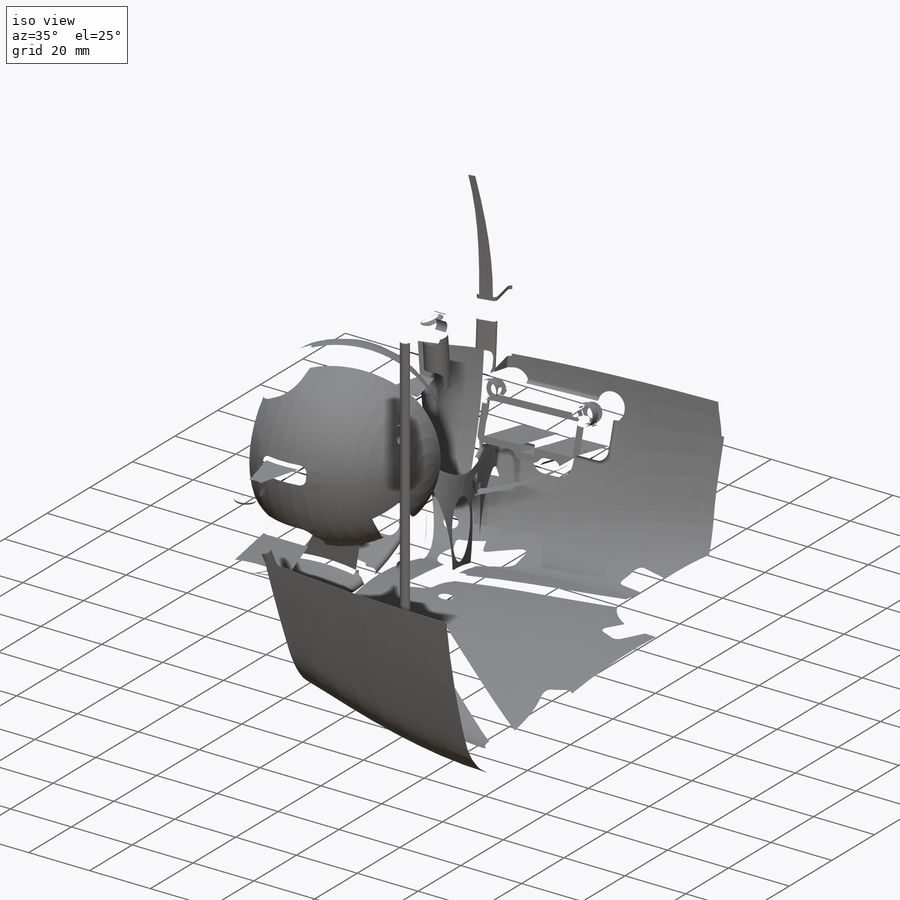
[diagram: iso view]
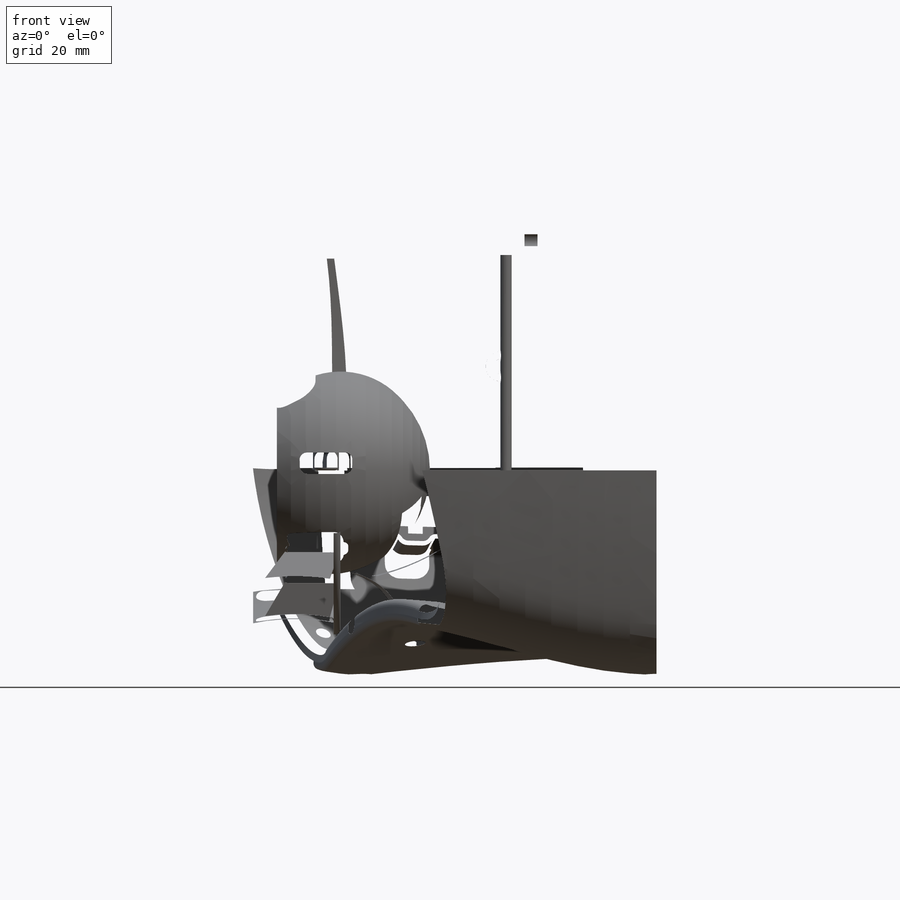
[diagram: front view]
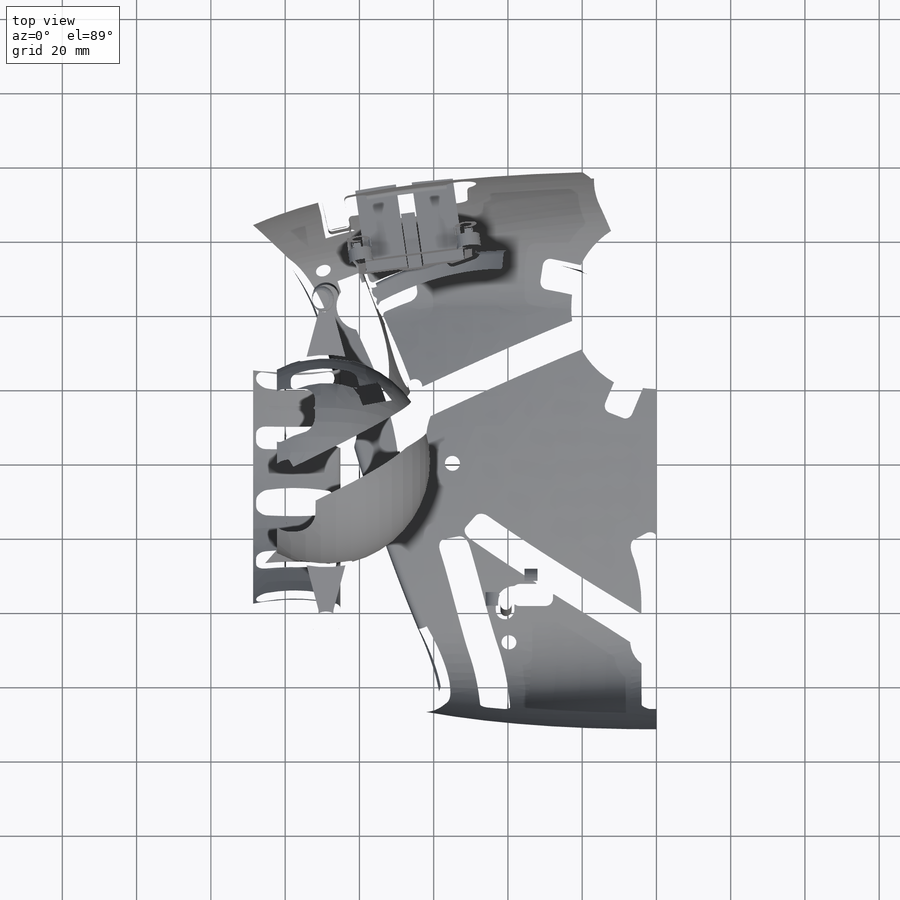
[diagram: top view]
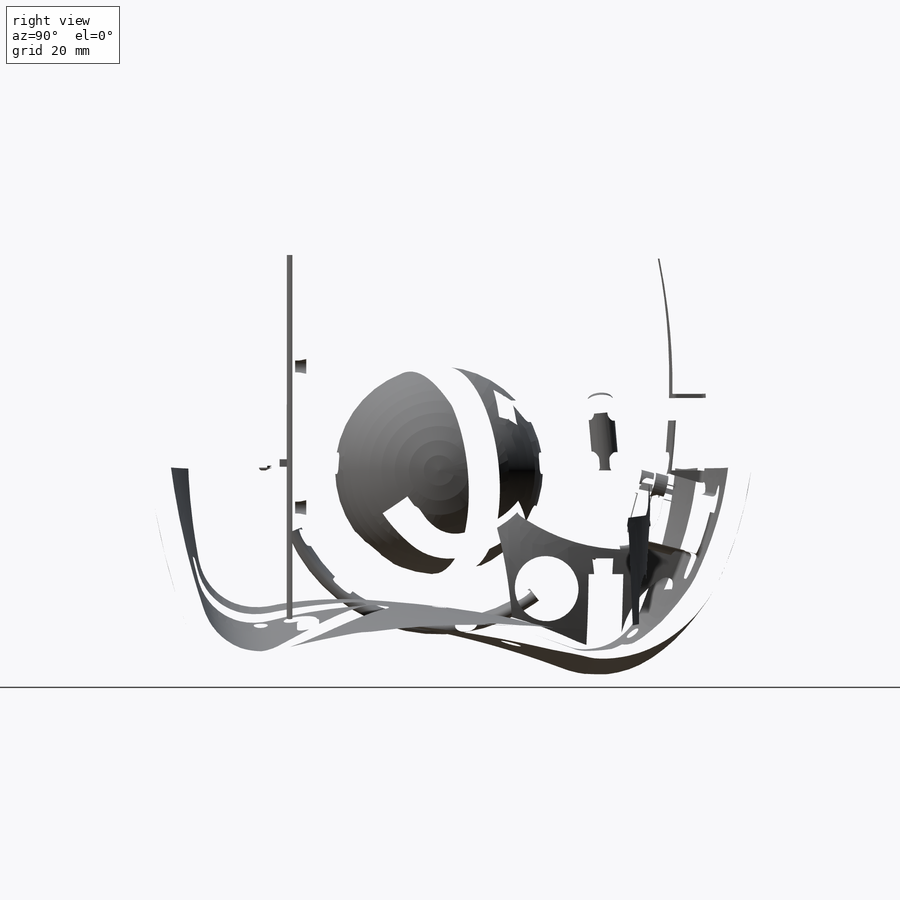
[diagram: right view]
SOLIDWORKS PART (.sldprt)
format: sldprt  version: not decoded by parser v0  size: 63,528,960 bytes
history: native  units: mm
features: sketch x185, revolve x182, thread x65, plane x61, surface_op x44, fillet x16, hole x12, sweep x8, material x7, pattern_circular x6, boolean_combine x6, cut_revolve x5, mirror x5, extrude x2, cut_extrude x1 + 22 further entries (+41 scaffold rows collapsed; 22 parser-record rows omitted)
feature tree (690):
  scaffold x41  (default folders/planes/origin — collapsed)
  material  "Material <nicht festgelegt>"
  material  "Rotation3"
  material  "Rotation4"
  material  "Rotation5"
  material  "Rotation6"
  material  "Rotation7"
  material  "Rotation13"
  plane  "Vorne"
  sketch  "Skizze4"  dims[c1.D3=~163.785268mm c1.D2=~51.648182mm c2.D3=~211.701734mm c2.D4=~228.409906mm c2.D7=~87.232181mm c3.D3=375.0mm c3.D5=~146.556848mm c3.D6=5000.0mm c3.D7=300.0mm c3.D12=200.0mm c3.D13=35.0mm c3.D14=480.0mm c3.D16=~225.559991mm c3.D17=~137.502733mm c3.D18=160.0mm c3.D19=90.0mm c3.D1=~28.211065mm c3.D2=~66.263957mm c4.D1=80.0mm c4.D5=~65.463628mm c4.D6=~16.895229mm c4.D8=~53.710382mm c5.D1=85.0mm c5.D2=14.0mm c5.D4=80.0mm c5.D5=28.0mm c5.D7=~82.24904mm c5.D8=80.0mm c5.D9=55.0mm c5.D10=47.5mm c5.D11=50.0mm c5.D15=85.0mm c5.D16=120.0mm c5.D14=85.0mm c6.D15=110.0mm c6.D16=~2.564998deg c7.D16=~52.359878mm c7.D17=~261.799388mm c7.D20=~285.822971mm c7.D21=~79.266788mm c7.D22=~73.257786mm]
  parser-record x22  (decoder bookkeeping rows leaked as tree rows — omitted from the tree; the rows remain in map.json)
  plane  "Ebene116"
  sketch  "Skizze5"  dims[c1.D1=~332.447459mm c1.D2=~299.702419mm c1.D5=~380.558368mm c1.D6=300.0mm c1.D7=300.0mm c2.D5=400.0mm c2.D6=400.0mm c2.D7=305.0mm c2.D8=280.0mm c3.D5=400.0mm c3.D8=250.0mm c3.D2=375.0mm c3.D3=~312.951834mm c3.D4=85.0mm c4.D2=280.0mm c4.D4=440.0mm c4.D5=475.0mm c4.D1=~1535.889742mm c5.D2=~1535.889742mm c5.D3=145.0mm c5.D4=145.0mm c5.D1=~1658.062789mm c6.D2=~1658.062789mm c6.D1=150.0mm c6.D3=~1483.529864mm]
  sketch  "Skizze6"  dims[c1.D2=~243.594358mm c1.D3=245.0mm c1.D4=465.0mm c1.D5=360.0mm c1.D1=140.0mm c2.D2=~1483.529864mm]
  sketch  "Skizze7"  dims[c1.D1=~180.714068mm c1.D2=~71.88216mm c1.D3=70.0mm c1.D4=180.0mm c2.D1=~1570.796327mm c2.D2=~1308.996939mm]
  sketch  "Skizze8"
  plane  "Ebene117"  Offset=80mm
  sketch  "3D-Skizze1"
  sketch  "Skizze9"  dims[D2=25.0mm D3=25.0mm D1=40.0mm]
  sketch  "Skizze10"
  plane  "Ebene118"  Offset=130mm
  "3D-Skizze2"
  sketch  "Skizze12"  dims[c1.D2=~28.489147mm c1.D3=20.0mm c1.D4=20.0mm c1.D5=100.0mm c1.D6=100.0mm c1.D1=30.0mm c2.D2=30.0mm]
  sketch  "Skizze13"
  plane  "Ebene123"
  sketch  "Skizze112"  dims[D1=45.0mm D2=65.0mm]
  surface_op  "Oberfläche-Ausformung3"
  sketch  "Skizze14"
  sketch  "Skizze17"  dims[D1=~349.06585mm D2=120.0mm D3=89.0mm]
  sketch  "Skizze18"
  plane  "Ebene119"
  sketch  "Skizze19"  dims[c1.D5=180.0mm c1.D6=250.0mm c2.D6=~314.148269mm c2.D7=315.0mm c2.D1=70.0mm c2.D2=65.0mm c2.D3=150.0mm c2.D4=55.0mm c3.D6=~1308.996939mm]
  surface_op  "Oberfläche-Trimmen4"
  sketch  "Skizze20"  dims[D1=350.0mm D2=200.0mm]
  surface_op  "Oberfläche-Trimmen5"
  sketch  "Skizze23"  dims[D3=75.0mm D1=37.5mm D2=48.0mm]
  surface_op  "Oberfläche-Trimmen6"
  sketch  "Skizze24"  dims[c1.D3=249.0mm c1.D4=100.0mm c1.D5=70.0mm c1.D2=12.5mm c1.D1=105.0mm c2.D2=15.0mm c2.D6=12.0mm c2.D7=~1308.996939mm c3.D2=~165.379311mm c3.D6=9.5mm c3.D7=~349.06585mm]
  surface_op  "Oberfläche-Trimmen7"
  sketch  "Skizze26"  dims[c1.D2=20.0mm c1.D1=~47.038277mm c2.D2=40.0mm c2.D4=28.0mm c2.D1=89.0mm c2.D3=8.0mm c2.D5=~785.398163mm c2.D6=8.0mm c2.D7=~261.799388mm]
  sketch  "Skizze28"  dims[c1.D1=17.2mm c1.D2=36.0mm c1.D3=~261.799388mm c2.D2=15.0mm c2.D4=30.0mm]
  revolve  "Rotation2"  [1 undecoded]
  hole  "M2.5 Gewindebohrung1"  Diameter=2.05mm Depth=12mm
  sketch  "Skizze62"  dims[D1=19.0mm]
  sketch  "Skizze61"  dims[hole-wizard template sketch: 34 standard entries collapsed; hole parameters kept: c5.Bohrerdurchmesser=2.05mm c5.Bohrungstiefe=12.0mm c5.Spitzenwinkel=~2059.488517mm]
  thread  "Bohrungsgewinde4"  Diameter=10mm  [1 undecoded]
  pattern_circular  "Kreismuster1"  Count=8  [1 undecoded]
  surface_op  "Oberfläche-Zusammenfügen5"
  surface_op  "Oberfläche-Zusammenfügen7"
  sketch  "Skizze57"  dims[D1=3.0mm D2=3.0mm D3=90.0mm D4=90.0mm]
  surface_op  "Oberfläche-Trimmen28"
  surface_op  "Oberfläche-Ausformung6"
  surface_op  "Oberfläche-Ausformung7"
  surface_op  "Oberfläche-Zusammenfügen8"
  surface_op  "Oberfläche-Zusammenfügen11"
  fillet  "Verrundung24"  Radius=2mm
  revolve  "Verrundung25"  [1 undecoded]
  sketch  "Skizze72"  dims[c1.D11=12.5mm c1.D1=~104.719755mm c1.D2=37.146mm c1.D3=8.785mm c1.D4=3.0mm c1.D5=10.0mm c1.D6=40.0mm c1.D7=3.0mm c1.D8=~87.266463mm c1.D9=40.0mm c2.D5=18.0mm c2.D6=~87.266463mm c2.D10=40.0mm c2.D12=18.0mm c2.D13=25.0mm c2.D14=30.0mm c2.D15=~1047.197551mm c2.D16=~1047.197551mm]
  sketch  "Skizze73"  dims[D1=45.0mm]
  revolve  "Verrundung21"  [1 undecoded]
  revolve  "Verrundung120"  [1 undecoded]
  revolve  "Verrundung121"  [1 undecoded]
  sketch  "Skizze75"  dims[D3=15.5mm D1=30.0mm D2=~392.699082mm]
  cut_extrude  "Schnitt-Linear austragen1"  Depth=8mm
  "Achse2"
  sketch  "Kreismuster2"  dims[D3=~6283.185307mm]
  sketch  "Skizze78"  dims[D1=~392.699082mm D2=30.0mm]
  revolve  "Verrundung23"  [1 undecoded]
  sketch  "Skizze79"  dims[D3=25.0mm D4=40.0mm D1=80.0mm D2=30.0mm D5=~19.210196mm]
  surface_op  "Oberfläche-Linear austragen1"
  sketch  "Skizze80"  dims[c1.D1=~211.950862mm c1.D2=8.0mm c1.D3=75.0mm c1.D5=12.0mm c1.D7=35.0mm c2.D1=21.0mm c2.D4=15.0mm c2.D6=33.0mm]
  surface_op  "Oberfläche-Trimmen31"
  sketch  "Skizze81"  dims[D2=40.0mm D1=25.0mm]
  surface_op  "Oberfläche-Zusammenfügen10"
  sketch  "Skizze83"  dims[D1=60.0mm]
  sketch  "Skizze84"  dims[D1=34.0mm]
  fillet  "Oberfläche-Verlängern6"  Radius=12mm
  sketch  "Skizze96"  dims[c1.D3=50.0mm c1.D4=31.0mm c1.D9=9.0mm c1.D10=9.0mm c1.D11=40.0mm c1.D1=20.0mm c1.D2=20.0mm c1.D5=22.0mm c1.D6=50.0mm c1.D7=33.0mm c1.D8=27.0mm c2.D2=1.5mm]
  surface_op  "Oberfläche-Trimmen34"
  sketch  "Skizze85"  dims[D1=85.0mm D2=12.8mm]
  plane  "Ebene121"
  sketch  "Skizze86"  dims[c1.D3=~151.139817mm c1.D6=50.0mm c1.D1=85.0mm c1.D2=~139.62634mm c2.D3=~349.06585mm c2.D4=~261.799388mm c2.D5=80.0mm]
  sketch  "Skizze87"  dims[D1=80.0mm D2=80.0mm]
  sketch  "Skizze88"  dims[D1=55.0mm]
  "3D-Skizze5"
  "3D-Skizze6"
  "3D-Skizze7"
  "3D-Skizze8"
  surface_op  "Oberfläche-Ausformung9"
  revolve  "Verrundung22"  [1 undecoded]
  sketch  "Skizze90"  dims[D2=36.0mm D4=48.0mm D1=~785.398163mm D3=~523.598776mm]
  surface_op  "Oberfläche-Trimmen32"
  sketch  "Skizze91"
  surface_op  "Oberfläche-Ausformung12"
  sketch  "Skizze93"
  sketch  "Skizze94"
  surface_op  "Oberfläche-Ausformung13"
  "3D-Skizze9"
  sketch  "Skizze95"  dims[D2=60.0mm D1=36.5mm D3=~654.498469mm D4=89.0mm]
  surface_op  "Oberfläche-Trimmen33"
  "3D-Skizze10"
  sketch  "Skizze97"  dims[D2=17.5mm D1=27.5mm D3=89.0mm D4=~569.917008mm]
  surface_op  "Oberfläche-Trimmen35"
  sketch  "Skizze98"  dims[D2=42.0mm D1=24.0mm D3=~523.598776mm]
  surface_op  "Oberfläche-Trimmen36"  Oberfläche-Offset19=0deg Oberfläche-Offset20=0deg Oberfläche-Offset21=0deg
  sketch  "Skizze99"  dims[D1=~3141.592654mm]
  surface_op  "Oberfläche-Trimmen37"
  surface_op  "Oberfläche-Trimmen43"
  surface_op  "Oberfläche-Trimmen39"
  surface_op  "Oberfläche-Trimmen40"
  surface_op  "Oberfläche-Trimmen41"
  surface_op  "Oberfläche-Trimmen42"
  sketch  "Skizze105"  dims[D1=38.0mm D2=64.0mm D3=47.0mm]
  plane  "Ebene122"
  sketch  "Skizze106"  dims[D1=10.0mm]
  extrude  "Oberfläche-Rotation3"  Depth=3141.592654mm
  surface_op  "Oberfläche-Trimmen44"  Oberfläche-Offset22=0deg
  surface_op  "Oberfläche-Trimmen46"
  sketch  "Skizze107"  dims[D1=8.0mm D3=50.0mm D2=30.0mm D4=~261.799388mm D5=77.5mm]
  surface_op  "Oberfläche-Trimmen47"
  sketch  "Skizze108"  dims[D1=15.0mm D6=44.0mm D2=28.0mm D3=32.0mm D4=70.35mm D5=49.3mm]
  surface_op  "Oberfläche-Trimmen48"
  sketch  "Skizze212"  dims[D1=40.0mm D2=10.0mm]
  surface_op  "Oberfläche-Trimmen55"
  sketch  "Skizze101"  dims[c1.D3=2.0mm c1.D1=26.5mm c1.D2=3.0mm c2.D3=6.0mm]
  sketch  "Skizze103"  dims[D1=85.0mm D2=90.0mm]
  thread  "Schnitt-Linear austragen2"  [2 undecoded]
  sketch  "Skizze104"  dims[D1=5.5mm D2=20.0mm]
  cut_revolve  "Schnitt-Rotation1"  [1 undecoded]
  sketch  "Skizze109"  dims[D1=2.55mm D2=~1570.796327mm D3=26.0mm D4=2.0mm D5=23.0mm D6=~1570.796327mm D7=6.0mm]
  "Schnitt-Rotation2"
  sketch  "Skizze111"  dims[D1=70.0mm D2=2.55mm D3=~1570.796327mm D4=27.0mm D5=2.5mm D6=5.0mm D7=~1570.796327mm D8=24.5mm D9=0.5mm]
  "Schnitt-Rotation3"
  sketch  "Skizze144"  dims[c1.D1=~2094.395102mm c1.D2=4.2mm c1.D3=4.2mm c2.D2=4.2mm c2.D3=4.2mm c3.D2=4.2mm c3.D3=4.2mm c4.D2=4.2mm c4.D3=4.2mm c4.D4=4.2mm c5.D2=4.2mm c5.D3=4.2mm]
  thread  "Schnitt-Linear austragen6"  Diameter=4mm  [1 undecoded]
  sketch  "Skizze146"  dims[D1=~349.06585mm D2=~1047.197551mm D3=~1047.197551mm D4=4.2mm D5=4.2mm D6=8.0mm]
  thread  "Schnitt-Linear austragen8"  Diameter=4.4mm  [1 undecoded]
  revolve  "Verrundung178"  [1 undecoded]
  revolve  "Verrundung85"  [1 undecoded]
  revolve  "Verrundung246"  [1 undecoded]
  revolve  "Verrundung247"  [1 undecoded]
  revolve  "Verrundung248"  [1 undecoded]
  revolve  "Verrundung249"  [1 undecoded]
  revolve  "Verrundung250"  [1 undecoded]
  revolve  "Verrundung251"  [1 undecoded]
  revolve  "Verrundung252"  [1 undecoded]
  revolve  "Verrundung253"  [1 undecoded]
  revolve  "Verrundung254"  [1 undecoded]
  revolve  "Verrundung255"  [1 undecoded]
  revolve  "Verrundung86"  [1 undecoded]
  hole  "Variabler Verrundungsradius9"  Diameter=1mm
  revolve  "Verrundung256"  [1 undecoded]
  hole  "Variabler Verrundungsradius8"  Diameter=2mm
  revolve  "Verrundung95"  [1 undecoded]
  revolve  "Verrundung187"  [1 undecoded]
  revolve  "Verrundung96"  [1 undecoded]
  revolve  "Verrundung257"  [1 undecoded]
  hole  "Variabler Verrundungsradius10"  Diameter=1mm
  revolve  "Verrundung104"  [1 undecoded]
  revolve  "Verrundung112"  [1 undecoded]
  revolve  "Verrundung105"  [1 undecoded]
  revolve  "Verrundung106"  [1 undecoded]
  revolve  "Verrundung107"  [1 undecoded]
  revolve  "Verrundung88"  [1 undecoded]
  hole  "Variabler Verrundungsradius2"  Diameter=1mm Oberfläche-Offset24=0deg
  sketch  "Skizze113"  dims[D1=1.0mm]
  thread  "Aufsatz-Linear austragen1"  Diameter=45.8mm  [1 undecoded]
  fillet  "Oberfläche-Verlängern5"  Radius=4.9mm
  sketch  "Oberflächenschnitt7"
  revolve  "Verrundung58"  [1 undecoded]
  revolve  "Verrundung113"  [1 undecoded]
  revolve  "Verrundung258"  [1 undecoded]
  hole  "Variabler Verrundungsradius11"  Diameter=1mm
  hole  "Variabler Verrundungsradius12"  Diameter=0mm
  hole  "Variabler Verrundungsradius13"  Diameter=0.5mm
  revolve  "Verrundung259"  [1 undecoded]
  revolve  "Verrundung260"  [1 undecoded]
  revolve  "Verrundung261"  [1 undecoded]
  sketch  "Skizze114"  dims[D1=34.0mm D2=28.0mm D3=20.0mm D4=30.0mm]
  extrude  "Oberfläche-Rotation4"  Depth=3141.592654mm Oberfläche-Offset25=0deg
  surface_op  "Oberfläche-Trimmen49"
  sketch  "Skizze115"  dims[D1=22.0mm D2=7.5mm D3=48.5mm D4=21.0mm]
  plane  "Ebene125"
  sketch  "Skizze116"  dims[D1=48.0mm D2=2.25mm D3=~785.398163mm D4=1.05mm D5=1.0mm D6=3.8mm D7=0.8mm D8=12.0mm D9=~1047.197551mm]
  "Schnitt-Rotation4"
  plane  "Ebene126"
  sketch  "Skizze117"  dims[D1=52.0mm D2=2.25mm D3=1.05mm D4=0.8mm D5=~785.398163mm D6=~1047.197551mm D7=2.5mm D8=5.4mm D9=12.0mm]
  "Schnitt-Rotation5"
  revolve  "Verrundung59"  [1 undecoded]
  revolve  "Verrundung60"  [1 undecoded]
  revolve  "Verrundung61"  [1 undecoded]
  revolve  "Verrundung62"  [1 undecoded]
  sketch  "Skizze118"
  thread  "Schnitt-Linear austragen3"  [2 undecoded]
  revolve  "Verrundung275"  [1 undecoded]
  revolve  "Verrundung276"  [1 undecoded]
  plane  "Ebene127"  Offset=89mm
  sketch  "Skizze119"  dims[D1=45.0mm D2=35.0mm D3=46.1mm D4=30.0mm D5=45.0mm]
  plane  "Ebene128"
  sketch  "Skizze120"  dims[D1=~506.145483mm D2=22.4mm D3=16.15mm]
  plane  "Ebene129"
  sketch  "Skizze121"  dims[c1.D1=6.3mm c1.D2=7.5mm c1.D3=8.293mm c2.D2=15.0mm c2.D3=7.5mm c2.D4=15.0mm c2.D5=15.0mm]
  thread  "Aufsatz-Linear austragen2"  Diameter=12mm  [1 undecoded]
  thread  "Aufsatz-Linear austragen3"  Diameter=2mm  [1 undecoded]
  plane  "Ebene140"  Offset=1mm
  sketch  "Skizze135"  dims[c1.D2=85.0mm c1.D4=42.0mm c1.D1=~959.931089mm c2.D2=~1745.329252mm c2.D3=30.5mm c2.D1=15.0mm c2.D5=~698.131701mm]
  thread  "Aufsatz-Linear austragen10"  Diameter=6mm  [1 undecoded]
  plane  "Ebene137"
  sketch  "Skizze136"  dims[D1=~144.160787mm D2=~100.560436mm D3=68.0mm D4=27.0mm D5=5.0mm D6=6.0mm]
  thread  "Aufsatz-Linear austragen11"  Diameter=4mm  [1 undecoded]
  plane  "Ebene138"
  sketch  "Skizze137"  dims[D1=1.0mm D2=10.0mm D3=10.0mm]
  thread  "Aufsatz-Linear austragen12"  Diameter=10mm  [1 undecoded]
  plane  "Ebene139"
  sketch  "Skizze138"  dims[c1.D1=6.0mm c1.D2=10.0mm c1.D3=15.0mm c1.D4=86.0mm c1.D5=10.0mm c1.D6=5.0mm c1.D7=~1570.796327mm c2.D1=6.0mm c2.D2=4.0mm c2.D3=5.0mm c2.D4=6.0mm c2.D5=3.0mm c2.D6=~1570.796327mm c2.D7=96.0mm]
  thread  "Aufsatz-Linear austragen13"  [2 undecoded]
  revolve  "Verrundung73"  [1 undecoded]
  revolve  "Verrundung74"  [1 undecoded]
  revolve  "Verrundung75"  [1 undecoded]
  hole  "Variabler Verrundungsradius3"  Diameter=0.5mm
  revolve  "Verrundung76"  [1 undecoded]
  revolve  "Verrundung122"  [1 undecoded]
  revolve  "Verrundung123"  [1 undecoded]
  hole  "Variabler Verrundungsradius4"  Diameter=3mm
  revolve  "Verrundung78"  [1 undecoded]
  revolve  "Verrundung79"  [1 undecoded]
  plane  "Ebene4"  Offset=10mm
  sketch  "Skizze156"  dims[D1=~1047.197551mm D2=~1047.197551mm D3=2.95mm D4=2.95mm]
  thread  "Schnitt-Linear austragen10"  Diameter=2.8mm  [1 undecoded]
  revolve  "Verrundung117"  [1 undecoded]
  sketch  "Skizze158"  dims[D1=3.5mm]
  thread  "Schnitt-Linear austragen12"  Diameter=15mm  [1 undecoded]
  revolve  "Verrundung278"  [1 undecoded]
  sketch  "Skizze203"  dims[D2=6.0mm D1=45.0mm D3=15.0mm D4=~1483.529864mm D5=2.0mm]
  plane  "Ebene154"
  sketch  "Skizze204"  dims[D1=6.0mm D2=12.5mm D3=~436.332313mm D4=46.1mm]
  plane  "Ebene155"
  sketch  "Skizze205"  dims[D1=2.0mm D2=~113.446401mm D3=22.4mm D4=16.15mm]
  plane  "Ebene156"
  sketch  "Skizze206"  dims[D1=6.3mm D2=15.0mm D3=15.0mm]
  thread  "Aufsatz-Linear austragen26"  [2 undecoded]
  thread  "Aufsatz-Linear austragen27"  Diameter=2mm  [1 undecoded]
  sketch  "Skizze207"  dims[D1=6.0mm D2=3.0mm D3=20.0mm D4=20.0mm D5=10.0mm]
  thread  "Aufsatz-Linear austragen28"  Diameter=8mm  [1 undecoded]
  sketch  "Skizze209"  dims[D1=2.5mm]
  thread  "Schnitt-Linear austragen21"  [2 undecoded]
  sketch  "Skizze250"
  thread  "Schnitt-Linear austragen28"  [2 undecoded]
  sketch  "Skizze208"  dims[c1.D5=75.0mm c1.D1=7.0mm c1.D2=7.5mm c1.D3=9.0mm c1.D4=20.0mm c2.D2=20.0mm]
  thread  "Aufsatz-Linear austragen29"  [2 undecoded]
  sketch  "Skizze251"  dims[D2=27.0mm D1=7.0mm]
  thread  "Aufsatz-Linear austragen39"  [2 undecoded]
  revolve  "Verrundung179"  [1 undecoded]
  revolve  "Verrundung180"  [1 undecoded]
  revolve  "Verrundung269"  [1 undecoded]
  revolve  "Verrundung181"  [1 undecoded]
  plane  "Ebene158"  Offset=6.9mm
  sketch  "Skizze210"  dims[D1=2.95mm D2=~1047.197551mm D3=2.95mm D4=11.0mm D5=2.95mm D6=~654.498469mm D7=~1047.197551mm D8=2.95mm D9=~13.745492mm D10=~1047.197551mm D11=2.95mm D12=2.95mm D13=12.0mm]
  thread  "Schnitt-Linear austragen22"  Diameter=2.8mm  [1 undecoded]
  thread  "Schnitt-Linear austragen23"  Diameter=0.7mm  [1 undecoded]
  thread  "Schnitt-Linear austragen24"  Diameter=1.2mm  [1 undecoded]
  revolve  "Verrundung182"  [1 undecoded]
  revolve  "Verrundung183"  [1 undecoded]
  revolve  "Verrundung184"  [1 undecoded]
  revolve  "Verrundung185"  [1 undecoded]
  revolve  "Verrundung186"  [1 undecoded]
  sketch  "Skizze211"  dims[D1=3.5mm]
  thread  "Schnitt-Linear austragen25"  Diameter=14mm  [1 undecoded]
  plane  "Ebene144"  Offset=21mm Oberfläche-Offset26=0deg Oberfläche-Offset27=0deg
  sketch  "Skizze179"  dims[D1=8.0mm D2=57.0mm D3=16.0mm D4=10.0mm]
  surface_op  "Oberfläche-Trimmen50"
  fillet  "Oberfläche-Verlängern7"  Radius=6mm
  fillet  "Oberfläche-Verlängern8"  Radius=5mm
  sketch  "Skizze180"  dims[c1.D1=12.5mm c1.D2=13.2mm c1.D3=9.5mm c2.D1=5.0mm c2.D2=57.5mm c2.D3=12.5mm c2.D4=9.2mm c2.D5=10.0mm c3.D2=57.5mm c3.D6=11.9mm]
  pattern_circular  "Oberfläche-Linear austragen2"  [2 undecoded]
  sketch  "Skizze182"  dims[D1=~196.349541mm D2=~79.534319mm D3=~59.259986mm D4=~9.849946mm]
  pattern_circular  "Oberfläche-Linear austragen3"  [2 undecoded]
  surface_op  "Oberfläche-Trimmen52"
  sketch  "Skizze183"  dims[D1=~144.369822mm D2=~69.978276mm]
  sketch  "Skizze184"  dims[D1=6.0mm D2=59.0mm D3=~218.166156mm D4=87.7mm D5=~13.356311mm]
  plane  "Ebene146"
  plane  "Ebene147"
  sketch  "Skizze186"  dims[c1.D1=8.0mm c1.D3=220.0mm c1.D2=17.0mm c2.D1=64.0mm]
  thread  "Aufsatz-Linear austragen22"  [2 undecoded]
  sketch  "Skizze187"  dims[D4=200.0mm D1=~18.255376mm D2=~74.878417mm D3=58.0mm]
  thread  "Schnitt-Linear austragen16"  Diameter=1mm  [1 undecoded]
  revolve  "Verrundung142"  [1 undecoded]
  revolve  "Verrundung150"  [1 undecoded]
  revolve  "Verrundung151"  [1 undecoded]
  revolve  "Verrundung152"  [1 undecoded]
  hole  "Variabler Verrundungsradius6"  Diameter=1mm
  revolve  "Verrundung153"  [1 undecoded]
  hole  "Variabler Verrundungsradius7"  Diameter=2mm
  revolve  "Verrundung171"  [1 undecoded]
  revolve  "Verrundung172"  [1 undecoded]
  plane  "Ebene184"  Offset=45mm
  sketch  "Skizze304"  dims[D4=15.0mm D1=45.0mm D2=~261.799388mm D3=15.0mm]
  thread  "Aufsatz-Linear austragen66"  Diameter=6mm  [1 undecoded]
  plane  "Ebene185"
  sketch  "Skizze305"  dims[D1=5.0mm D2=~1308.996939mm D3=~1308.996939mm]
  thread  "Aufsatz-Linear austragen67"  Diameter=3mm  [1 undecoded]
  plane  "Ebene186"
  sketch  "Skizze307"  dims[D1=5.0mm D2=~1308.996939mm]
  plane  "Ebene187"
  sketch  "Skizze191"  dims[D5=15.0mm D1=~506.145483mm D2=71.0mm D3=22.1mm D4=45.0mm]
  sketch  "Skizze308"  dims[D1=6.0mm]
  sketch  "Skizze310"
  sketch  "Skizze311"
  revolve  "Verrundung386"  [1 undecoded]
  revolve  "Verrundung387"  [1 undecoded]
  revolve  "Verrundung388"  [1 undecoded]
  revolve  "Verrundung389"  [1 undecoded]
  revolve  "Verrundung391"  [1 undecoded]
  revolve  "Verrundung392"  [1 undecoded]
  sketch  "Skizze192"  dims[D1=~47.187865mm D2=70.0mm D3=~207.799809mm D4=85.0mm]
  pattern_circular  "Oberfläche-Linear austragen4"  [2 undecoded]
  fillet  "Oberfläche-Verlängern9"  Radius=5mm
  surface_op  "Oberfläche-Trimmen53"
  revolve  "Verrundung164"  [1 undecoded]
  plane  "Ebene149"
  sketch  "Skizze193"  dims[D1=2.5mm]
  pattern_circular  "Oberfläche-Linear austragen7"  [2 undecoded]
  "3D-Skizze13"
  sketch  "Skizze249"  dims[D4=5.0mm D5=5.0mm D2=85.0mm D3=55.0mm D1=2.0mm]
  surface_op  "Oberfläche-Trimmen58"  Oberfläche-Offset34=0deg
  surface_op  "Oberfläche-Trimmen59"
  revolve  "Verrundung266"  [1 undecoded]
  revolve  "Verrundung267"  [1 undecoded]
  revolve  "Verrundung268"  [1 undecoded]
  sweep  "Schnitt-Austragung1"
  revolve  "Verrundung165"  [1 undecoded]
  plane  "Ebene150"  Offset=52mm
  sketch  "Skizze194"  dims[D1=2.5mm D2=58.0mm D3=33.0mm]
  thread  "Schnitt-Linear austragen18"  [2 undecoded]
  revolve  "Verrundung166"  [1 undecoded]
  plane  "Ebene165"  Offset=40mm
  sketch  "Skizze241"  dims[D1=48.0mm D2=50.0mm D3=12.0mm D4=2.5mm D5=3.5mm D6=1.0mm D7=7.0mm]
  "Schnitt-Rotation14"
  revolve  "Verrundung242"  [1 undecoded]
  revolve  "Verrundung243"  Angle=0deg Oberfläche-Offset50=0deg
  sketch  "Skizze195"  dims[c1.D4=30.0mm c1.D1=90.15mm c1.D2=53.0mm c1.D3=20.0mm c2.D2=113.0mm c2.D5=~174.532925mm c2.D6=42.0mm]
  sketch  "Skizze277"  dims[D1=4.0mm D2=48.7mm D3=~1134.464014mm D4=15.0mm]
  cut_revolve  "Kurve7"  [1 undecoded]
  plane  "Ebene176"
  sketch  "Skizze278"  dims[D1=2.0mm D2=5.0mm]
  sweep  "Austragung3"
  "Achse5"
  "Achse6"
  revolve  "Verrundung322"  [1 undecoded]
  revolve  "Verrundung334"  [1 undecoded]
  revolve  "Verrundung324"  [1 undecoded]
  revolve  "Verrundung325"  [1 undecoded]
  sketch  "Skizze196"  dims[D1=~523.598776mm D2=78.0mm D3=75.0mm D4=~45.892499mm]
  pattern_circular  "Oberfläche-Linear austragen5"  [2 undecoded]
  fillet  "Oberfläche-Verlängern10"  Radius=5mm
  surface_op  "Oberfläche-Trimmen54"
  revolve  "Verrundung167"  [1 undecoded]
  cut_revolve  "Kurve2"  [1 undecoded]
  sketch  "Skizze252"  dims[c1.D2=5.5mm c1.D1=65.5mm c1.Oberfläche-Offset35=0.0deg c2.D1=0.0mm]
  fillet  "Oberfläche-Verlängern13"  Radius=6mm
  surface_op  "Oberfläche-Zusammenfügen12"
  revolve  "Verrundung271"  [1 undecoded]
  thread  "Aufsatz-Linear austragen44"  Diameter=9mm  [1 undecoded]
  sketch  "Oberflächenschnitt8"
  boolean_combine  "Kombinieren1"
  revolve  "Verrundung273"  [1 undecoded]
  revolve  "Verrundung274"  [1 undecoded]
  plane  "Ebene151"
  sketch  "Skizze197"  dims[D1=2.5mm]
  sweep  "Schnitt-Austragung2"
  revolve  "Verrundung168"  [1 undecoded]
  revolve  "Verrundung295"  Angle=0deg Oberfläche-Offset30=0deg
  fillet  "Oberfläche-Verlängern11"  Radius=10mm
  sketch  "Skizze198"  dims[D1=35.0mm D2=~69.81317mm D3=82.0mm D4=10.0mm D5=12.0mm]
  cut_revolve  "Kurve3"  [1 undecoded]
  plane  "Ebene152"
  sketch  "Skizze199"  dims[D1=2.5mm]
  sweep  "Schnitt-Austragung3"
  revolve  "Verrundung169"  [1 undecoded]
  plane  "Ebene166"  Offset=90mm
  sketch  "Skizze242"  dims[D1=56.5mm D2=50.0mm D3=~610.865238mm D4=12.0mm D5=2.5mm D6=1.0mm D7=3.8mm D8=~5.725781mm]
  "Schnitt-Rotation15"
  revolve  "Verrundung244"  [1 undecoded]
  revolve  "Verrundung245"  Angle=0deg Oberfläche-Offset51=0deg Oberfläche-Offset52=0deg
  sketch  "Skizze279"  dims[D1=3.0mm D2=14.0mm D3=~57.616389mm D4=~17.316409mm]
  surface_op  "Oberfläche-Trimmen60"
  "3D-Skizze14"
  plane  "Ebene177"
  sketch  "Skizze280"  dims[D1=5.0mm D2=2.0mm]
  sweep  "Austragung4"
  sketch  "Skizze281"  dims[D1=~1047.197551mm]
  sketch  "Skizze282"  dims[D1=~1047.197551mm]
  revolve  "Verrundung328"  [1 undecoded]
  revolve  "Verrundung329"  [1 undecoded]
  revolve  "Verrundung330"  [1 undecoded]
  revolve  "Verrundung331"  [1 undecoded]
  revolve  "Verrundung332"  [1 undecoded]
  revolve  "Verrundung333"  [1 undecoded]
  sketch  "Skizze200"  dims[D3=2.5mm D6=4.0mm D1=~523.598776mm D2=29.0mm D4=~523.598776mm D5=~523.598776mm]
  thread  "Aufsatz-Linear austragen25"  Diameter=8mm  [1 undecoded]
  revolve  "Verrundung173"  [1 undecoded]
  revolve  "Verrundung174"  [1 undecoded]
  revolve  "Verrundung175"  [1 undecoded]
  revolve  "Verrundung176"  [1 undecoded]
  "Achse4"
  plane  "Ebene153"  Offset=523.598776mm
  sketch  "Skizze202"  dims[D1=2.5mm D2=6.0mm D3=6.0mm D4=36.0mm]
  thread  "Schnitt-Linear austragen20"  [2 undecoded]
  revolve  "Verrundung177"  [1 undecoded]
  plane  "Ebene167"  Offset=65mm
  sketch  "Skizze243"  dims[D1=19.0mm D2=48.0mm D3=~261.799388mm D4=2.5mm D5=3.5mm D6=1.0mm D7=~5.681007mm D8=~13.217377mm]
  "Schnitt-Rotation16"
  revolve  "Verrundung262"  [1 undecoded]
  revolve  "Verrundung263"  [1 undecoded]
  sketch  "Skizze283"  dims[c1.D1=~18.028618mm c1.D2=~79.77886mm c1.D3=~197.39556mm c1.D4=6.9mm c1.Oberfläche-Offset53=0.0deg c2.D1=1.0mm]
  cut_revolve  "Kurve8"  [1 undecoded]
  plane  "Ebene178"
  sketch  "Skizze284"  dims[D1=2.0mm D2=5.0mm]
  sweep  "Austragung5"
  sketch  "Skizze285"  dims[D1=~872.664626mm]
  sketch  "Skizze286"  dims[D1=~872.664626mm]
  revolve  "Verrundung335"  [1 undecoded]
  revolve  "Verrundung340"  [1 undecoded]
  revolve  "Verrundung341"  [1 undecoded]
  revolve  "Verrundung336"  [1 undecoded]
  revolve  "Verrundung337"  [1 undecoded]
  plane  "Ebene159"  Offset=37mm
  sketch  "Skizze213"  dims[D4=3.2mm D5=4.0mm D1=33.02mm D2=22.05mm D3=94.08mm D6=6.0mm D7=~46.829947mm D8=~1308.996939mm]
  thread  "Aufsatz-Linear austragen30"  Diameter=3mm  [1 undecoded]
  plane  "Ebene160"
  sketch  "Skizze214"  dims[c1.D3=1.0mm c1.D1=3.0mm c1.D2=6.0mm c1.D4=32.0mm c1.D5=~1308.996939mm c2.D2=2.0mm c2.D6=~1308.996939mm]
  thread  "Aufsatz-Linear austragen31"  Diameter=5mm  [1 undecoded]
  sketch  "Skizze215"  dims[D4=36.0mm D1=22.05mm D2=3.0mm D3=~1265.363708mm D5=~436.332313mm D6=13.5mm]
  thread  "Aufsatz-Linear austragen32"  Diameter=1mm  [1 undecoded]
  thread  "Aufsatz-Linear austragen33"  Diameter=3mm  [1 undecoded]
  revolve  "Verrundung188"  [1 undecoded]
  revolve  "Verrundung189"  [1 undecoded]
  revolve  "Verrundung190"  [1 undecoded]
  revolve  "Verrundung191"  [1 undecoded]
  revolve  "Verrundung192"  [1 undecoded]
  plane  "Ebene179"
  plane  "Ebene180"  Offset=8mm
  sketch  "Skizze287"  dims[D1=1.5mm]
  sketch  "Skizze288"  dims[D1=1.5mm]
  thread  "Aufsatz-Linear austragen56"  [2 undecoded]
  revolve  "Verrundung342"  [1 undecoded]
  revolve  "Verrundung343"  [1 undecoded]
  revolve  "Verrundung344"  [1 undecoded]
  plane  "Ebene164"  Offset=17mm
  sketch  "Skizze237"  dims[D1=10.0mm D2=17.5mm D3=4.0mm D4=5.0mm]
  thread  "Aufsatz-Linear austragen37"  Diameter=3mm  [1 undecoded]
  sketch  "Skizze238"  dims[D2=5.0mm D1=4.0mm D3=~610.865238mm]
  thread  "Aufsatz-Linear austragen38"  Diameter=5mm  [1 undecoded]
  sketch  "Skizze275"  dims[D1=1.0mm D2=2.0mm D3=4.0mm D4=2.0mm]
  thread  "Aufsatz-Linear austragen55"  [2 undecoded]
  revolve  "Verrundung317"  [1 undecoded]
  revolve  "Verrundung315"  [1 undecoded]
  revolve  "Verrundung318"  [1 undecoded]
  revolve  "Verrundung319"  [1 undecoded]
  sketch  "Skizze276"  dims[D1=3.0mm]
  thread  "Schnitt-Linear austragen37"  Diameter=4mm  [1 undecoded]
  revolve  "Verrundung320"  [1 undecoded]
  revolve  "Verrundung321"  [1 undecoded]
  sketch  "Skizze239"  dims[D1=~907.571211mm D2=50.0mm D3=70.25mm D4=~349.06585mm D5=8.0mm D6=9.0mm D7=1.0mm]
  "Schnitt-Rotation12"
  revolve  "Verrundung238"  [1 undecoded]
  sketch  "Skizze240"  dims[D1=55.0mm D2=44.0mm D3=15.0mm D4=1.0mm D5=2.5mm D6=3.5mm D7=5.0mm]
  "Schnitt-Rotation13"
  revolve  "Verrundung239"  [1 undecoded]
  revolve  "Verrundung240"  [1 undecoded]
  fillet  "Oberfläche-Verlängern14"  Radius=7mm
  fillet  "Oberfläche-Verlängern15"  Radius=6mm
  sketch  "Skizze266"  dims[D1=80.0mm D2=~523.598776mm]
  plane  "Ebene173"
  sketch  "Skizze268"  dims[D5=9.0mm D6=5.0mm D1=35.0mm D2=51.0mm D3=10.0mm D4=24.5mm]
  thread  "Aufsatz-Linear austragen51"  Diameter=50.1mm  [1 undecoded]
  sketch  "Oberflächenschnitt11"
  sketch  "Oberflächenschnitt12"  dims[c1.Oberfläche-Offset40=0.0deg c1.D1=0.0mm c2.D1=0.25mm c3.D1=0.25mm c4.D1=0.25mm c5.D1=0.25mm]
  sketch  "Oberflächenschnitt14"
  boolean_combine  "Kombinieren4"
  revolve  "Verrundung296"  [1 undecoded]
  revolve  "Verrundung297"  [1 undecoded]
  sketch  "Skizze270"  dims[D5=8.0mm D6=4.0mm D1=16.5mm D2=10.0mm D3=~70.723404mm D4=~51.777882mm]
  sketch  "Skizze271"  dims[D1=60.0mm D2=~349.06585mm]
  plane  "Ebene174"
  sketch  "Skizze272"  dims[c1.D1=8.0mm c1.D6=4.0mm c1.D2=~24.174932mm c1.D3=~5.489902mm c1.D4=~29.937208mm c1.D5=~23.763366mm c1.Oberfläche-Offset44=0.0deg c2.D1=0.5mm c2.Oberfläche-Offset45=0.0deg c3.D1=0.5mm c3.Oberfläche-Offset46=0.0deg c4.D1=0.0mm]
  thread  "Aufsatz-Linear austragen53"  Diameter=66.2mm  [1 undecoded]
  fillet  "Oberfläche-Verlängern19"  Radius=7mm
  fillet  "Oberfläche-Verlängern20"  Radius=7mm
  sketch  "Oberflächenschnitt19"
  sketch  "Oberflächenschnitt20"
  sketch  "Oberflächenschnitt21"
  boolean_combine  "Kombinieren10"
  revolve  "Verrundung303"  [1 undecoded]
  revolve  "Verrundung304"  [1 undecoded]
  sketch  "Skizze273"  dims[D1=40.0mm D2=~436.332313mm]
  plane  "Ebene175"
  sketch  "Skizze274"  dims[D1=8.0mm D4=4.0mm D2=0.25mm D3=13.0mm]
  thread  "Aufsatz-Linear austragen54"  Diameter=19.8mm Oberfläche-Offset47=0deg Oberfläche-Offset48=0deg Oberfläche-Offset49=0deg  [1 undecoded]
  fillet  "Oberfläche-Verlängern21"  Radius=8mm
  fillet  "Oberfläche-Verlängern22"  Radius=8mm
  sketch  "Oberflächenschnitt22"
  sketch  "Oberflächenschnitt23"
  sketch  "Oberflächenschnitt24"
  boolean_combine  "Kombinieren7"
  revolve  "Verrundung305"  [1 undecoded]
  revolve  "Verrundung306"  [1 undecoded]
  sketch  "Skizze289"  dims[D1=4.0mm D2=8.0mm D3=28.0mm D4=10.0mm]
  thread  "Aufsatz-Linear austragen57"  Diameter=5mm Oberfläche-Offset54=0deg  [1 undecoded]
  sketch  "Skizze290"  dims[D1=~1.756514mm D2=~1.540914mm]
  surface_op  "Oberfläche-Trimmen61"
  sketch  "Oberflächenschnitt26"
  boolean_combine  "Kombinieren8"
  revolve  "Verrundung345"  [1 undecoded]
  revolve  "Verrundung346"  [1 undecoded]
  sketch  "Skizze291"  dims[D2=8.0mm D3=4.0mm D1=62.0mm D4=44.0mm]
  thread  "Aufsatz-Linear austragen58"  Diameter=5mm Oberfläche-Offset55=0deg  [1 undecoded]
  fillet  "Oberfläche-Verlängern23"  Radius=0.5mm
  sketch  "Oberflächenschnitt27"
  boolean_combine  "Kombinieren9"
  revolve  "Verrundung347"  [1 undecoded]
  revolve  "Verrundung348"  [1 undecoded]
  sketch  "Skizze293"  dims[D1=13.0mm D2=85.0mm D3=~261.799388mm D4=30.0mm]
  plane  "Ebene181"
  sketch  "Skizze294"  dims[D1=55.0mm D2=26.4mm D3=23.9mm D4=79.6mm D5=~135.263017mm]
  plane  "Ebene182"
  sketch  "Skizze295"  dims[c1.D1=9.6mm c1.D2=0.2mm c1.D3=0.2mm c1.D4=0.2mm c1.D5=0.2mm c2.D3=0.5mm c2.D4=0.2mm c3.D3=0.2mm c3.D1=9.6mm c3.D2=0.2mm c4.D3=0.2mm c4.D4=0.2mm c4.D5=0.2mm c4.D6=3.0mm c4.D7=10.0mm]
  thread  "Aufsatz-Linear austragen60"  Diameter=22.9mm  [1 undecoded]
  thread  "Schnitt-Linear austragen38"  Diameter=10mm  [1 undecoded]
  sketch  "Skizze297"  dims[D1=4.0mm D2=6.0mm]
  sketch  "Skizze298"  dims[D1=2.0mm]
  sketch  "Skizze299"  dims[D1=3.0mm]
  thread  "Aufsatz-Linear austragen62"  [2 undecoded]
  thread  "Schnitt-Linear austragen41"  Diameter=2mm  [1 undecoded]
  sketch  "Skizze300"  dims[D1=3.0mm]
  thread  "Aufsatz-Linear austragen63"  Diameter=9mm  [1 undecoded]
  thread  "Schnitt-Linear austragen42"  Diameter=8mm  [1 undecoded]
  revolve  "Verrundung353"  [1 undecoded]
  sketch  "Skizze301"  dims[c1.D2=6.5mm c1.D3=3.2mm c1.D1=0.1mm c1.D4=1.0mm c1.D5=1.0mm c1.D6=0.0mm c1.D7=1.0mm c1.D8=0.0mm c2.D1=2.0mm c2.D4=1.2mm c2.D9=1.2mm c2.D10=2.0mm c2.D11=1.2mm c2.D12=2.0mm]
  thread  "Aufsatz-Linear austragen64"  Diameter=0.8mm  [1 undecoded]
  thread  "Schnitt-Linear austragen43"  Diameter=0.8mm  [1 undecoded]
  plane  "Ebene183"  Offset=6mm
  sketch  "Skizze302"  dims[c1.D1=~1047.197551mm c1.D2=2.95mm c1.D3=2.95mm c2.D1=~1047.197551mm c2.D2=2.95mm c2.D3=2.95mm c2.D4=5.0mm c2.D5=~1047.197551mm c2.D6=2.95mm c2.D7=2.95mm c2.D8=5.0mm c2.D9=~1047.197551mm c2.D10=2.95mm c2.D11=2.95mm c2.D12=5.0mm]
  thread  "Schnitt-Linear austragen44"  Diameter=2.8mm  [1 undecoded]
  sketch  "Skizze303"  dims[D1=0.5mm D2=0.5mm D3=0.5mm D4=3.0mm]
  thread  "Aufsatz-Linear austragen65"  Diameter=2.8mm  [1 undecoded]
  revolve  "Verrundung366"  [1 undecoded]
  revolve  "Verrundung367"  [1 undecoded]
  revolve  "Verrundung368"  [1 undecoded]
  revolve  "Verrundung369"  [1 undecoded]
  revolve  "Verrundung371"  [1 undecoded]
  revolve  "Verrundung372"  [1 undecoded]
  revolve  "Verrundung373"  [1 undecoded]
  revolve  "Verrundung374"  [1 undecoded]
  revolve  "Verrundung363"  [1 undecoded]
  revolve  "Verrundung364"  [1 undecoded]
  revolve  "Verrundung365"  [1 undecoded]
  revolve  "Verrundung377"  [1 undecoded]
  revolve  "Verrundung378"  [1 undecoded]
  revolve  "Verrundung379"  [1 undecoded]
  revolve  "Verrundung380"  [1 undecoded]
  revolve  "Verrundung381"  [1 undecoded]
  revolve  "Verrundung382"  [1 undecoded]
  revolve  "Verrundung383"  [1 undecoded]
  revolve  "Verrundung384"  [1 undecoded]
  revolve  "Verrundung385"  [1 undecoded]
  sketch  "Skizze312"  dims[D2=2.5mm D3=7.0mm D1=45.0mm]
  plane  "Ebene188"  Offset=261.799388mm
  plane  "Ebene189"  Offset=12mm
  sketch  "Skizze323"  dims[c1.D1=6.0mm c1.D4=45.0mm c1.D2=15.0mm c1.D3=~1483.529864mm c2.D4=~523.598776mm]
  plane  "Ebene192"
  sketch  "Skizze324"  dims[D1=6.0mm D2=~436.332313mm D3=2.0mm]
  plane  "Ebene193"
  sketch  "Skizze325"  dims[D1=2.5mm D2=7.0mm]
  sweep  "Austragung9"
  sketch  "Skizze326"
  sweep  "Austragung10"
  sketch  "Skizze327"  dims[D1=~130.899694mm D2=~130.899694mm D3=~261.799388mm D4=~261.799388mm]
  plane  "Ebene194"
  sketch  "Skizze328"  dims[D2=20.0mm D3=1.25mm D5=1.5mm D1=5.0mm D4=~1047.197551mm]
  sketch  "Skizze329"  dims[D1=~785.398163mm]
  plane  "Ebene195"
  sketch  "Skizze330"  dims[c1.D1=2.5mm c1.D2=50.0mm c1.D3=1.5mm c1.D4=20.0mm c1.D5=~139.62634mm c1.D6=20.0mm c2.D4=19.0mm]
  plane  "Ebene196"
  thread  "Aufsatz-Linear austragen70"  Diameter=6mm  [1 undecoded]
  sketch  "Skizze331"  dims[D1=43.23mm D2=3.0mm D3=3.0mm D4=~523.598776mm D5=25.0mm D6=25.0mm D7=43.3mm D8=3.0mm D9=1.3mm D10=~174.532925mm D11=17.5mm]
  thread  "Aufsatz-Linear austragen71"  Diameter=4mm  [1 undecoded]
  mirror  "Spiegeln7"
  mirror  "Spiegeln8"
  revolve  "Verrundung397"  [1 undecoded]
  revolve  "Verrundung398"  [1 undecoded]
  revolve  "Verrundung399"  [1 undecoded]
  revolve  "Verrundung400"  [1 undecoded]
  revolve  "Verrundung401"  [1 undecoded]
  revolve  "Verrundung402"  [1 undecoded]
  sketch  "Skizze332"  dims[D1=43.3mm D2=3.0mm D3=3.0mm D4=3.0mm D5=25.0mm D6=~523.598776mm]
  thread  "Aufsatz-Linear austragen72"  Diameter=4mm  [1 undecoded]
  sketch  "Skizze333"  dims[D1=~1396.263402mm D2=20.0mm]
  plane  "Ebene197"
  sketch  "Skizze334"  dims[D1=42.0mm D2=25.0mm D3=1.5mm D4=19.0mm D5=~261.799388mm D6=~523.598776mm]
  thread  "Aufsatz-Linear austragen73"  Diameter=2mm  [1 undecoded]
  sketch  "Skizze341"  dims[D1=~1003.56432mm]
  plane  "Ebene199"
  sketch  "Skizze342"  dims[c1.D1=35.0mm c1.D2=12.0mm c1.D3=1.5mm c1.D4=18.0mm c1.D5=~157.079633mm c1.D6=~453.785606mm c2.D1=36.0mm c2.D7=3.0mm]
  thread  "Aufsatz-Linear austragen74"  Diameter=1mm  [1 undecoded]
  mirror  "Spiegeln10"
  mirror  "Spiegeln11"
  revolve  "Verrundung411"  [1 undecoded]
  revolve  "Verrundung412"  [1 undecoded]
  revolve  "Verrundung413"  [1 undecoded]
  revolve  "Verrundung414"  [1 undecoded]
  revolve  "Verrundung415"  [1 undecoded]
  revolve  "Verrundung416"  [1 undecoded]
  revolve  "Verrundung403"  [1 undecoded]
  revolve  "Verrundung404"  [1 undecoded]
  revolve  "Verrundung405"  [1 undecoded]
  revolve  "Verrundung417"  [1 undecoded]
  sketch  "Skizze344"  dims[D2=4.0mm D1=1.0mm D3=42.0mm]
  thread  "Aufsatz-Linear austragen75"  Diameter=10mm  [1 undecoded]
  revolve  "Verrundung418"  [1 undecoded]
  revolve  "Verrundung420"  [1 undecoded]
  plane  "Ebene200"  Offset=12mm
  sketch  "Skizze345"  dims[c1.D1=6.0mm c1.D2=~139.62634mm c1.D3=44.5mm c1.D4=85.8mm c1.D5=20.0mm c1.D6=18.5mm c1.D7=42.0mm c2.D1=5.3mm c2.D3=~45.335039mm c2.D4=~91.741608mm c2.D8=~1396.263402mm c2.D9=6.0mm]
  thread  "Aufsatz-Linear austragen76"  Diameter=2.5mm  [1 undecoded]
  sketch  "Skizze346"  dims[D5=20.0mm D1=~77.200919mm D2=~392.699082mm D3=~830.112409mm D4=~13.480987mm D6=~25.409484mm]
  thread  "Aufsatz-Linear austragen77"  Diameter=2.5mm  [1 undecoded]
  revolve  "Verrundung421"  [1 undecoded]
  revolve  "Verrundung422"  [1 undecoded]
  mirror  "Spiegeln1"
decode coverage: 248 of 537 modeling features carry decoded parameters; 22 rows unclassified (native names shown)
note: ~ marks probable driven/reference dimensions
note: 274 parameter values undecoded
summary: [note 2] (x229 features) parser:v0:name_prior (class ref resolved by constrained assignment + name prior) | no parameter record found for 198 features; profile_refs inferred from adjacent sketches, not decoded
note: suppression state not decoded; provenance and decode notes live in map.json
